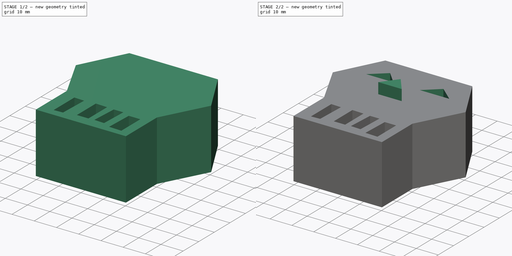
[diagram: build sequence overview — one tinted view per stage of 2, left to right]
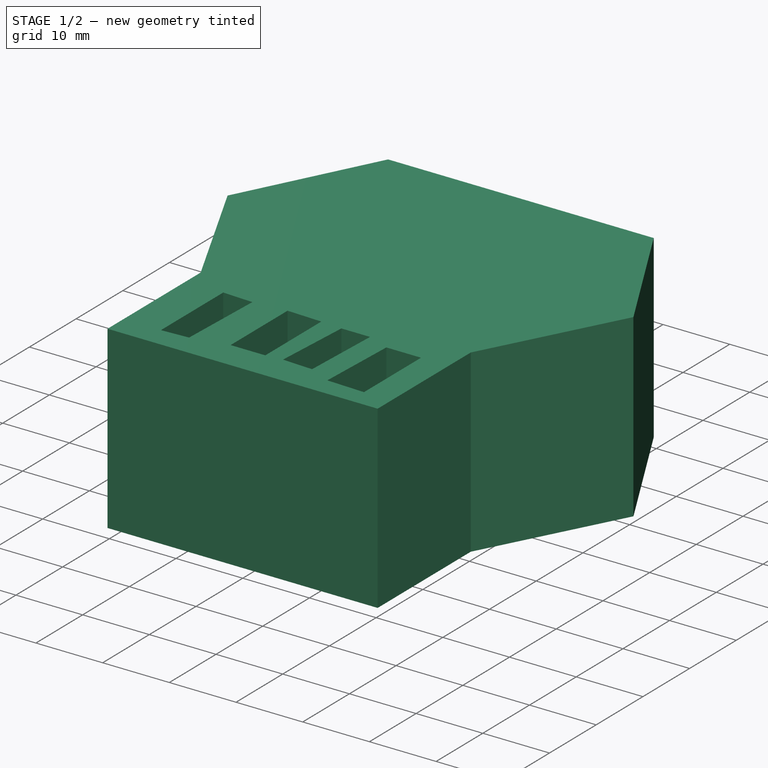
[diagram: stage 1 of 2 — iso view after this stage's code; geometry added in this stage tinted green]
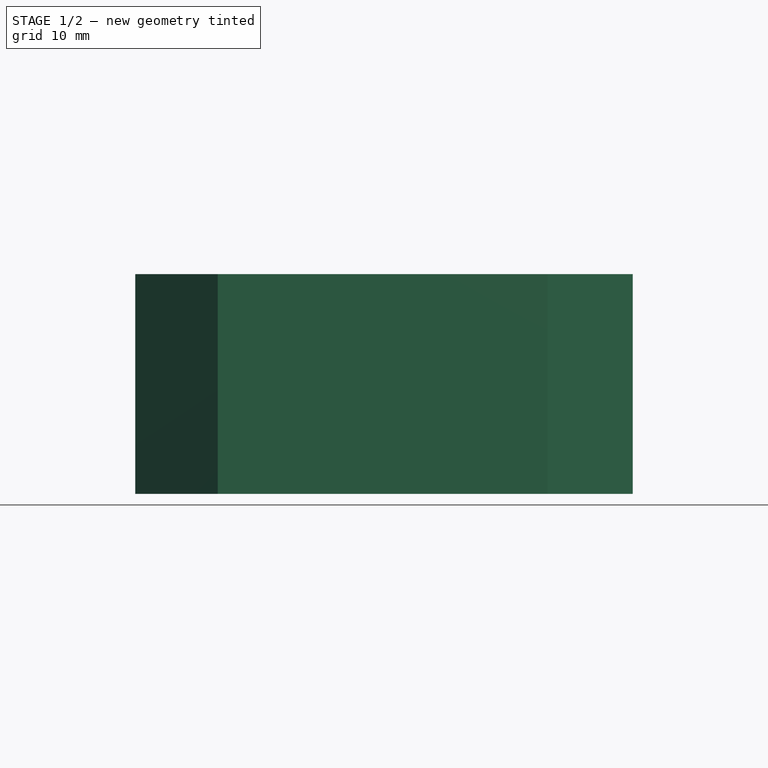
[diagram: stage 1 of 2 — front view after this stage's code; geometry added in this stage tinted green]
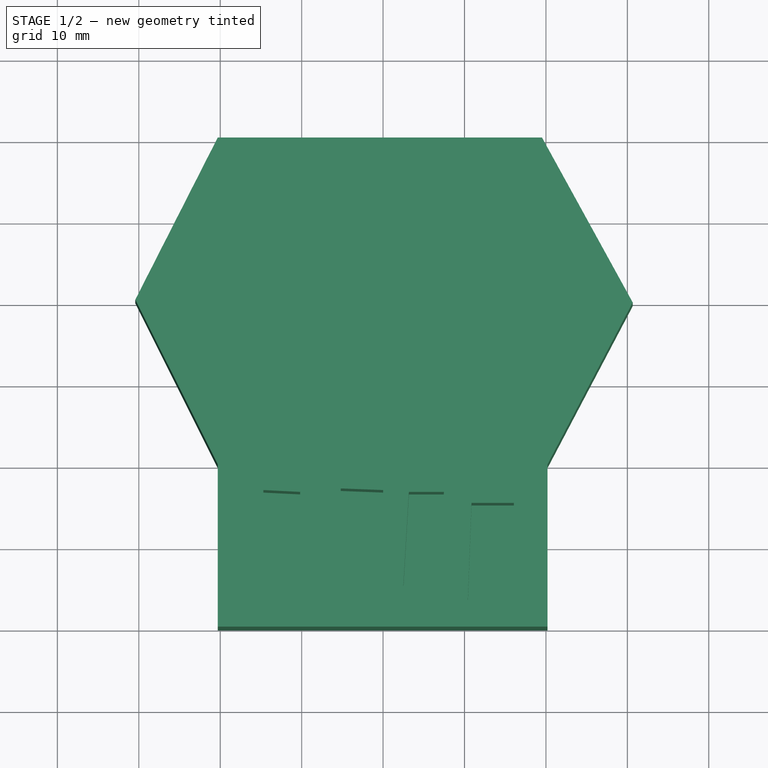
[diagram: stage 1 of 2 — top view after this stage's code; geometry added in this stage tinted green]
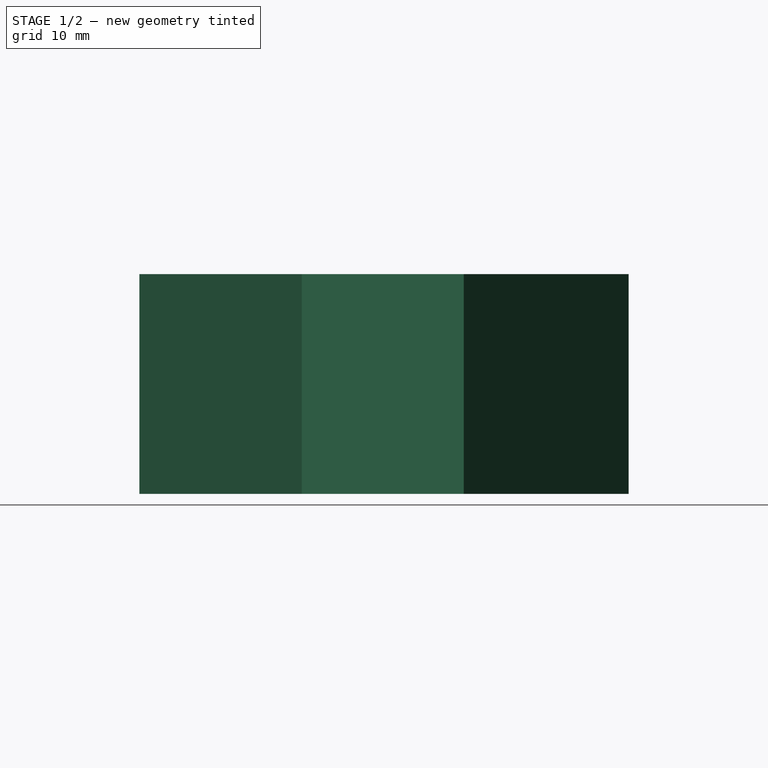
[diagram: stage 1 of 2 — right view after this stage's code; geometry added in this stage tinted green]
FCSTD DOCUMENT  (FreeCAD 0.21R33694 (Git))
Label: OJT1_T017_R01_calavera
License: All rights reserved
LicenseURL: http://en.wikipedia.org/wiki/All_rights_reserved
objects: Sketcher::SketchObject×4, PartDesign::Pad×2, PartDesign::Pocket×2, PartDesign::Body×1
note: 13 computed .brp shape members not serialized (recipe doc carries the construction recipe); baked Part::Feature solids carry a one-line shape summary decoded from their .brp

FEATURE [Sketcher::SketchObject] Sketch
  FullyConstrained = false
  MapMode = 5
  Support = -> [XY_Plane]
  sketch-geometry (8):
    g0: LineSegment StartX=-20.3071 StartY=40.1335 StartZ=0 EndX=19.5199 EndY=40.1335 EndZ=0
    g1: LineSegment StartX=19.5199 StartY=40.1335 StartZ=0 EndX=30.6579 EndY=19.8824 EndZ=0
    g2: LineSegment StartX=30.6579 StartY=19.8824 StartZ=0 EndX=20.1949 EndY=0 EndZ=0
    g3: LineSegment StartX=20.1949 StartY=0 StartZ=0 EndX=20.1949 EndY=-19.9445 EndZ=0
    g4: LineSegment StartX=20.1949 StartY=-19.9445 StartZ=0 EndX=-20.3071 EndY=-19.9445 EndZ=0
    g5: LineSegment StartX=-20.3071 StartY=-19.9445 StartZ=0 EndX=-20.3071 EndY=0 EndZ=0
    g6: LineSegment StartX=-20.3071 StartY=0 StartZ=0 EndX=-30.4326 EndY=20.22 EndZ=0
    g7: LineSegment StartX=-30.4326 StartY=20.22 StartZ=0 EndX=-20.3071 EndY=40.1335 EndZ=0
  constraints (14):
    c: Horizontal(g0)
    c: Coincident(g0,g1)
    c: Coincident(g1,g2)
    c: PointOnObject(g2,g-1)
    c: Coincident(g2,g3)
    c: Vertical(g3)
    c: Coincident(g3,g4)
    c: Horizontal(g4)
    c: Coincident(g4,g5)
    c: PointOnObject(g5,g-1)
    c: Vertical(g5)
    c: Coincident(g5,g6)
    c: Coincident(g6,g7)
    c: Coincident(g7,g0)
FEATURE [PartDesign::Pad] Pad
  Direction = (0,0,1)
  Length = 27
  Length2 = 10
  Profile = -> Sketch
  ReferenceAxis = -> Sketch [N_Axis]
  Type = 0
FEATURE [Sketcher::SketchObject] Sketch001
  FullyConstrained = false
  MapMode = 5
  Placement = pos=(0,0,27) rot=(0,0,1;0rad)
  Support = -> [Pad]
  sketch-geometry (16):
    g0: LineSegment StartX=-14.7059 StartY=-3.16742 StartZ=0 EndX=-10.181 EndY=-3.39366 EndZ=0
    g1: LineSegment StartX=-10.181 StartY=-3.39366 StartZ=0 EndX=-10.6335 EndY=-16.2896 EndZ=0
    g2: LineSegment StartX=-10.6335 StartY=-16.2896 StartZ=0 EndX=-14.7059 EndY=-16.5158 EndZ=0
    g3: LineSegment StartX=-14.7059 StartY=-16.5158 StartZ=0 EndX=-14.7059 EndY=-3.16742 EndZ=0
    g4: LineSegment StartX=-5.20362 StartY=-2.96824 StartZ=0 EndX=0 EndY=-3.16742 EndZ=0
    g5: LineSegment StartX=0 StartY=-3.16742 StartZ=0 EndX=0 EndY=-15.1584 EndZ=0
    g6: LineSegment StartX=0 StartY=-15.1584 StartZ=0 EndX=-5.20362 EndY=-15.1584 EndZ=0
    g7: LineSegment StartX=-5.20362 StartY=-15.1584 StartZ=0 EndX=-5.20362 EndY=-2.96824 EndZ=0
    g8: LineSegment StartX=3.16742 StartY=-3.39367 StartZ=0 EndX=7.46607 EndY=-3.39367 EndZ=0
    g9: LineSegment StartX=7.46607 StartY=-3.39367 StartZ=0 EndX=7.01358 EndY=-15.1584 EndZ=0
    g10: LineSegment StartX=7.01358 StartY=-15.1584 StartZ=0 EndX=2.48869 EndY=-14.9321 EndZ=0
    g11: LineSegment StartX=2.48869 StartY=-14.9321 StartZ=0 EndX=3.16742 EndY=-3.39367 EndZ=0
    g12: LineSegment StartX=10.8597 StartY=-4.75113 StartZ=0 EndX=16.0634 EndY=-4.75113 EndZ=0
    g13: LineSegment StartX=16.0634 StartY=-4.75113 StartZ=0 EndX=16.0634 EndY=-16.9683 EndZ=0
    g14: LineSegment StartX=16.0634 StartY=-16.9683 StartZ=0 EndX=10.4072 EndY=-16.7421 EndZ=0
    g15: LineSegment StartX=10.4072 StartY=-16.7421 StartZ=0 EndX=10.8597 EndY=-4.75113 EndZ=0
  constraints (24):
    c: Coincident(g0,g1)
    c: Coincident(g1,g2)
    c: Coincident(g2,g3)
    c: Coincident(g3,g0)
    c: Vertical(g3)
    c: PointOnObject(g4,g-2)
    c: Coincident(g4,g5)
    c: PointOnObject(g5,g-2)
    c: Coincident(g5,g6)
    c: Horizontal(g6)
    c: Coincident(g6,g7)
    c: Coincident(g7,g4)
    c: Vertical(g7)
    c: Horizontal(g8)
    c: Coincident(g8,g9)
    c: Coincident(g9,g10)
    c: Coincident(g10,g11)
    c: Coincident(g11,g8)
    c: Horizontal(g12)
    c: Coincident(g12,g13)
    c: Vertical(g13)
    c: Coincident(g13,g14)
    c: Coincident(g14,g15)
    c: Coincident(g15,g12)
FEATURE [PartDesign::Pocket] Pocket
  BaseFeature = -> Pad
  Direction = (0,0,-1)
  Length = 18
  Length2 = 5
  Profile = -> Sketch001
  ReferenceAxis = -> Sketch001 [N_Axis]
  Type = 0
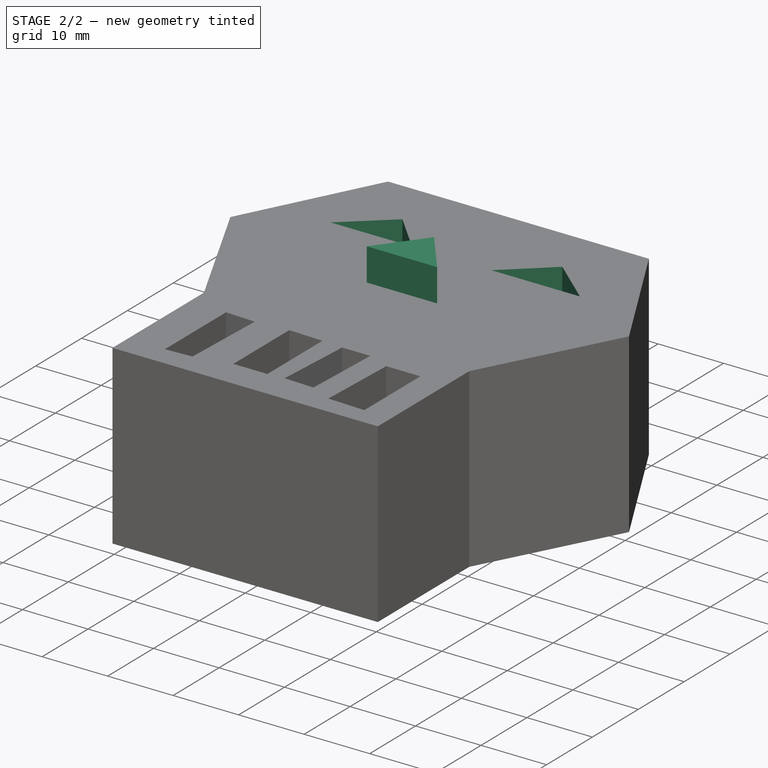
[diagram: stage 2 of 2 — iso view after this stage's code; geometry added in this stage tinted green]
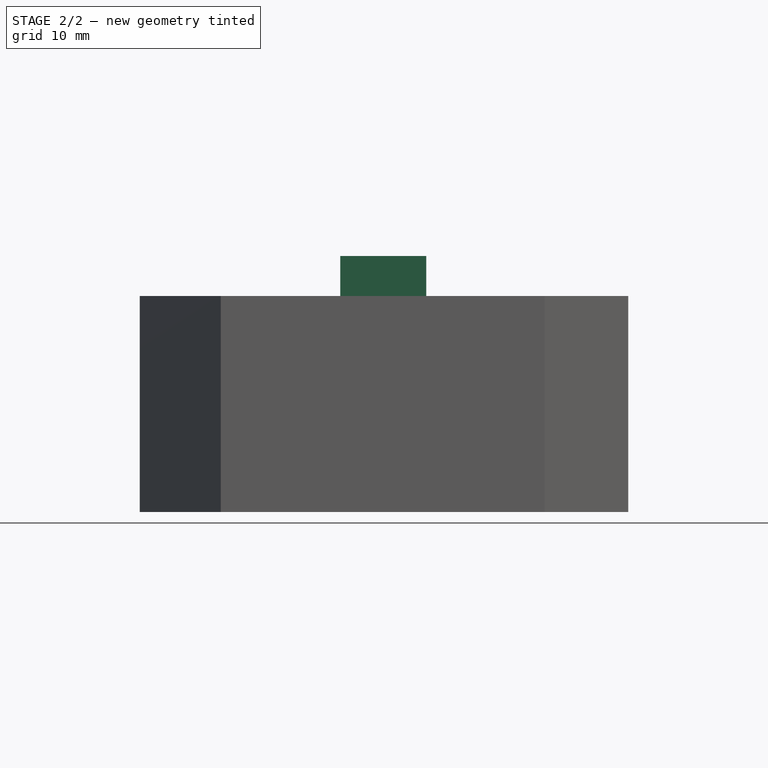
[diagram: stage 2 of 2 — front view after this stage's code; geometry added in this stage tinted green]
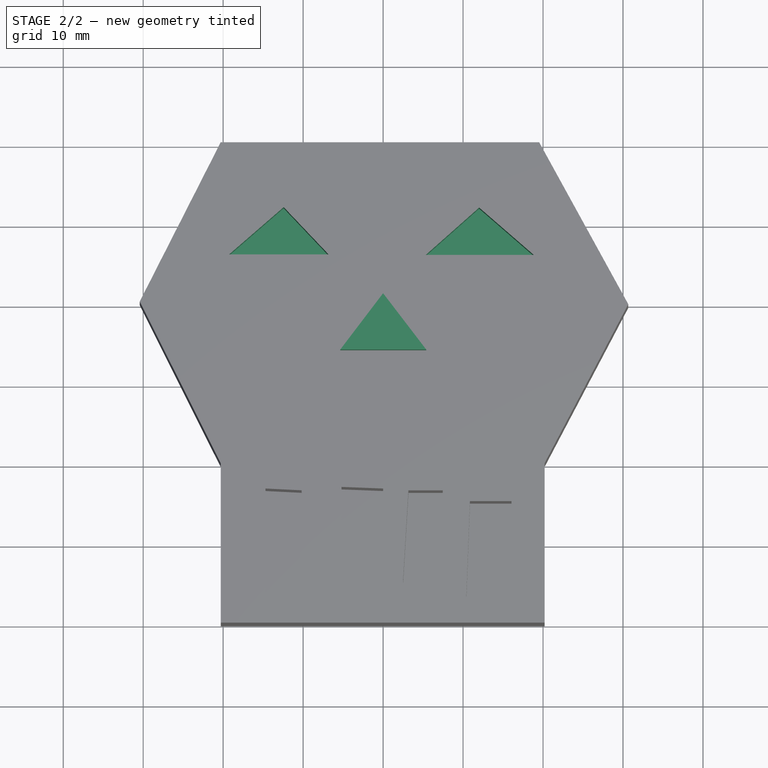
[diagram: stage 2 of 2 — top view after this stage's code; geometry added in this stage tinted green]
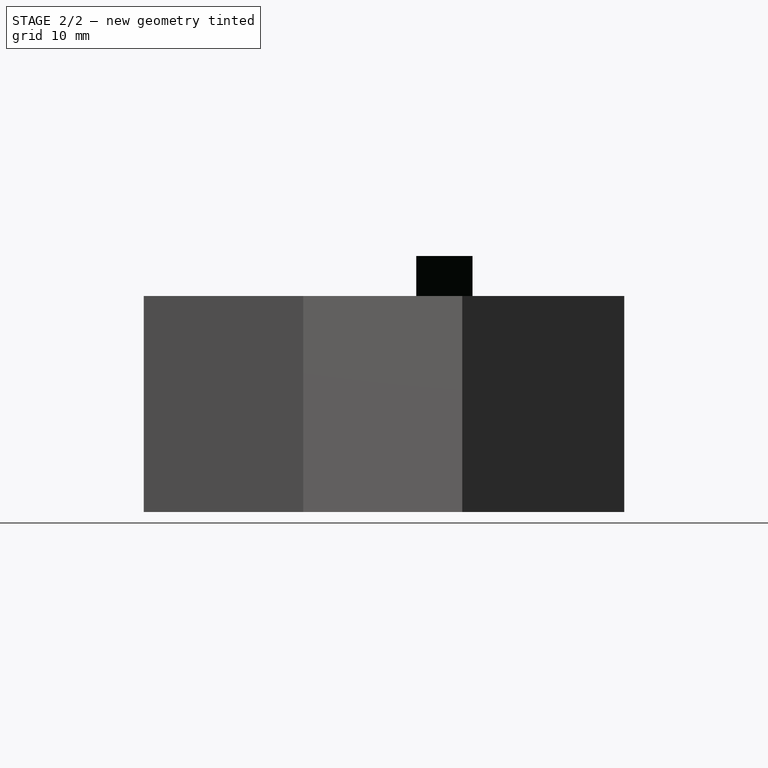
[diagram: stage 2 of 2 — right view after this stage's code; geometry added in this stage tinted green]
FEATURE [Sketcher::SketchObject] Sketch002
  FullyConstrained = false
  MapMode = 5
  Placement = pos=(0,0,27) rot=(0,0,1;0rad)
  Support = -> [Pocket]
  sketch-geometry (3):
    g0: LineSegment StartX=-1.8e-15 StartY=21.1685 StartZ=0 EndX=-5.35366 EndY=14.1296 EndZ=0
    g1: LineSegment StartX=-5.35366 StartY=14.1296 StartZ=0 EndX=5.38986 EndY=14.1296 EndZ=0
    g2: LineSegment StartX=5.38986 StartY=14.1296 StartZ=0 EndX=-1.8e-15 EndY=21.1685 EndZ=0
  constraints (5):
    c: PointOnObject(g0,g-2)
    c: Coincident(g0,g1)
    c: Horizontal(g1)
    c: Coincident(g1,g2)
    c: Coincident(g2,g0)
FEATURE [PartDesign::Pad] Pad001
  BaseFeature = -> Pocket
  Direction = (0,0,1)
  Length = 5
  Length2 = 10
  Profile = -> Sketch002
  ReferenceAxis = -> Sketch002 [N_Axis]
  Type = 0
FEATURE [Sketcher::SketchObject] Sketch003
  FullyConstrained = false
  MapMode = 5
  Placement = pos=(0,0,27) rot=(0,0,1;0rad)
  Support = -> [Pad001]
  sketch-geometry (6):
    g0: LineSegment StartX=-12.4323 StartY=32.0222 StartZ=0 EndX=-19.2568 EndY=26.1076 EndZ=0
    g1: LineSegment StartX=-19.2568 StartY=26.1076 StartZ=0 EndX=-6.82104 EndY=26.1076 EndZ=0
    g2: LineSegment StartX=-6.82104 StartY=26.1076 StartZ=0 EndX=-12.4323 EndY=32.0222 EndZ=0
    g3: LineSegment StartX=12.0144 StartY=31.9663 StartZ=0 EndX=5.34156 EndY=26.0518 EndZ=0
    g4: LineSegment StartX=5.34156 StartY=26.0518 StartZ=0 EndX=18.839 EndY=26.0518 EndZ=0
    g5: LineSegment StartX=18.839 StartY=26.0518 StartZ=0 EndX=12.0144 EndY=31.9663 EndZ=0
  constraints (8):
    c: Coincident(g0,g1)
    c: Horizontal(g1)
    c: Coincident(g1,g2)
    c: Coincident(g2,g0)
    c: Coincident(g3,g4)
    c: Horizontal(g4)
    c: Coincident(g4,g5)
    c: Coincident(g5,g3)
FEATURE [PartDesign::Pocket] Pocket001
  BaseFeature = -> Pad001
  Direction = (0,0,-1)
  Length = 8
  Length2 = 5
  Profile = -> Sketch003
  ReferenceAxis = -> Sketch003 [N_Axis]
  Type = 0
FEATURE [PartDesign::Body] Body
  Group = -> [Sketch,Pad,Sketch001,Pocket,Sketch002,Pad001,Sketch003,Pocket001]
  Origin = -> Origin
  Tip = -> Pocket001
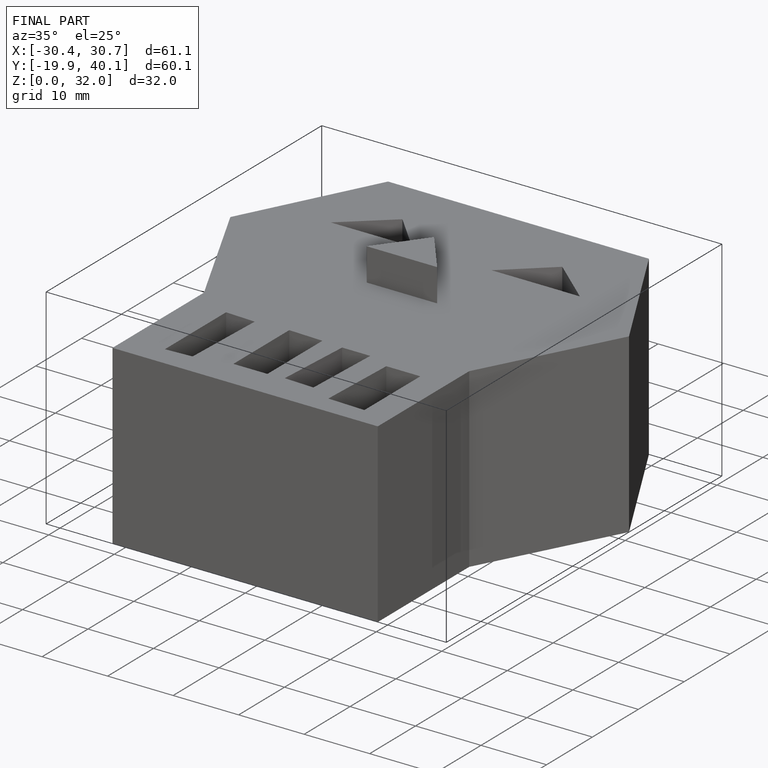
[diagram: finished part — iso view with bounding-box wireframe]
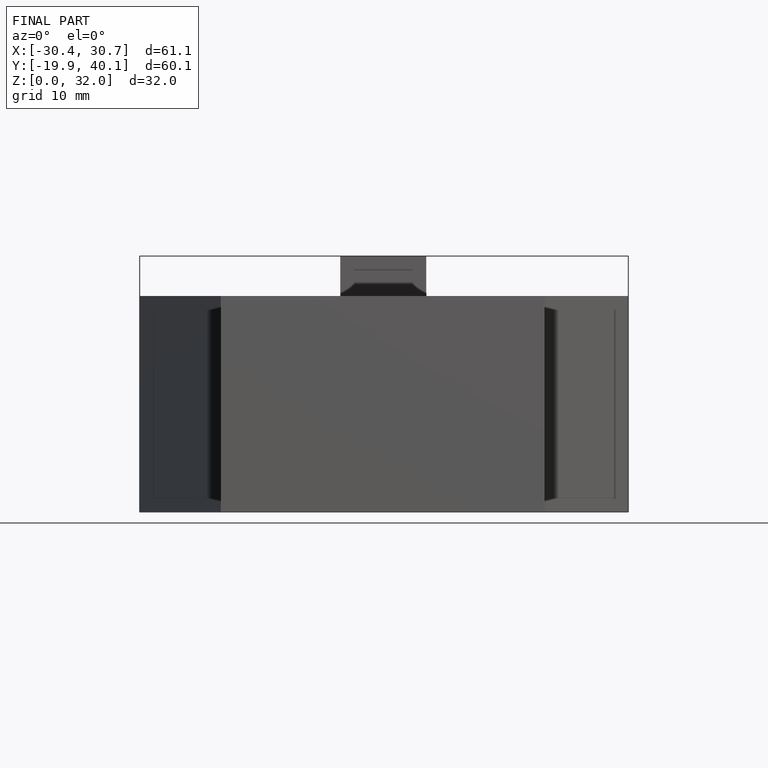
[diagram: finished part — front view with bounding-box wireframe]
